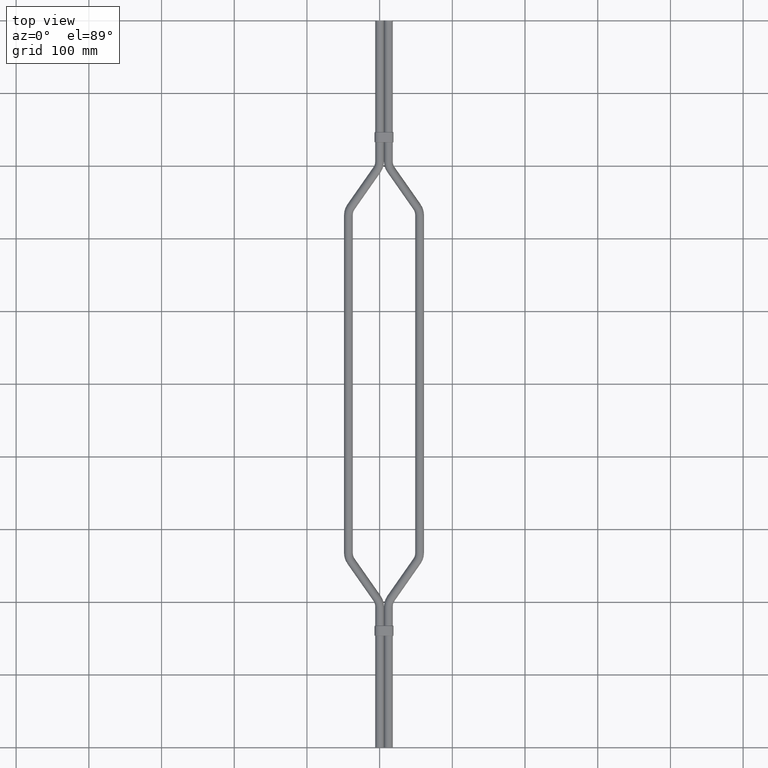
[diagram: clean part render]
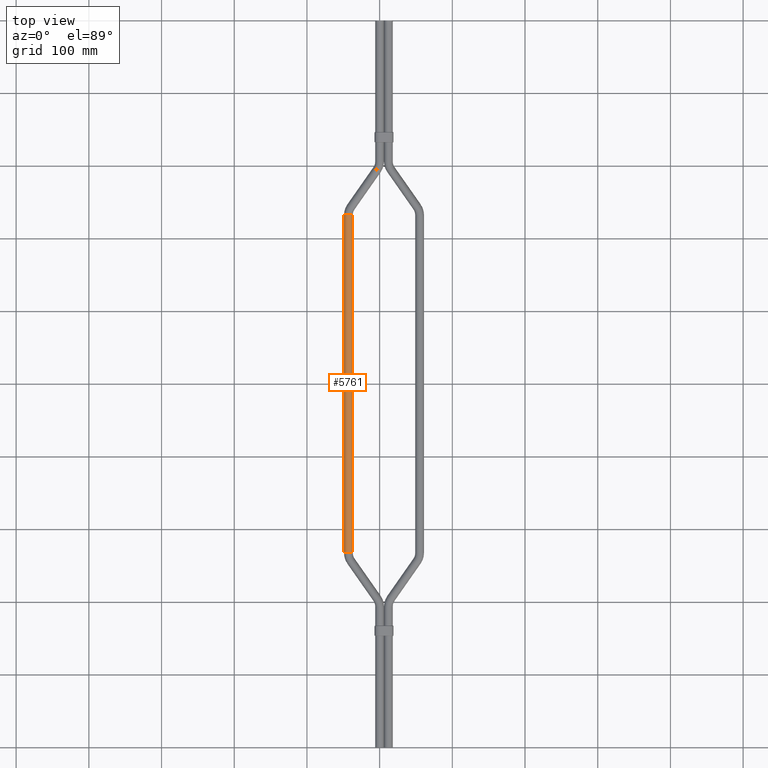
[diagram: same view with one face highlighted and labeled with its STEP entity id]
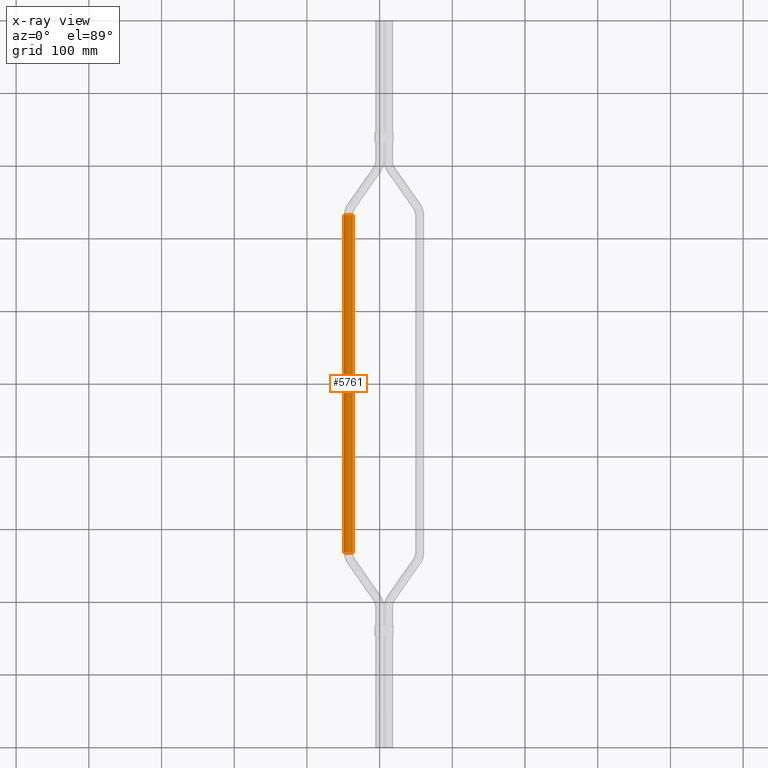
[diagram: x-ray of the same camera — body ghosted, the highlighted face saturated]
A machine part, top view. The second image highlights one B-rep face of the part: STEP entity #5761.
The next image is the same camera in x-ray: the body ghosted, the highlighted face saturated — about 0% of this face is hidden behind the body in this view.
In plain terms, the highlighted cylindrical surface (edge-blend (fillet) strip) has radius 6 mm, axis along (-0, 1, 0).
Its self-contained STEP definition (entity closure, byte-faithful):
#275 = CARTESIAN_POINT ( 'NONE',  ( -42.99999999999998600, 732.2836599325137300, 0.0000000000000000000 ) ) ;
#564 = DIRECTION ( 'NONE',  ( -1.000000000000000000, 0.0000000000000000000, 0.0000000000000000000 ) ) ;
#749 = ORIENTED_EDGE ( 'NONE', *, *, #6240, .F. ) ;
#770 = VECTOR ( 'NONE', #1220, 1000.000000000000000 ) ;
#817 = CARTESIAN_POINT ( 'NONE',  ( -42.99999999999990100, 267.7163400674862100, 0.0000000000000000000 ) ) ;
#878 = DIRECTION ( 'NONE',  ( 0.0000000000000000000, 0.0000000000000000000, 1.000000000000000000 ) ) ;
#1022 = CARTESIAN_POINT ( 'NONE',  ( -48.99999999999990100, 267.7163400674862100, 0.0000000000000000000 ) ) ;
#1040 = EDGE_CURVE ( 'NONE', #7381, #1831, #1161, .T. ) ;
#1092 = AXIS2_PLACEMENT_3D ( 'NONE', #275, #4609, #878 ) ;
#1161 = LINE ( 'NONE', #1245, #770 ) ;
#1220 = DIRECTION ( 'NONE',  ( -1.792350070406987500E-016, 1.000000000000000000, 0.0000000000000000000 ) ) ;
#1245 = CARTESIAN_POINT ( 'NONE',  ( -48.99999999999990100, 267.7163400674862100, 0.0000000000000000000 ) ) ;
#1439 = DIRECTION ( 'NONE',  ( 0.0000000000000000000, 0.0000000000000000000, 1.000000000000000000 ) ) ;
#1831 = VERTEX_POINT ( 'NONE', #4929 ) ;
#2082 = AXIS2_PLACEMENT_3D ( 'NONE', #7127, #4890, #564 ) ;
#2495 = CARTESIAN_POINT ( 'NONE',  ( -36.99999999999990100, 267.7163400674862100, 7.347880794884174000E-016 ) ) ;
#2862 = ORIENTED_EDGE ( 'NONE', *, *, #5230, .T. ) ;
#2947 = LINE ( 'NONE', #5305, #5988 ) ;
#3379 = ORIENTED_EDGE ( 'NONE', *, *, #1040, .F. ) ;
#4162 = EDGE_CURVE ( 'NONE', #7381, #6590, #4411, .T. ) ;
#4179 = VERTEX_POINT ( 'NONE', #5831 ) ;
#4411 = CIRCLE ( 'NONE', #7158, 6.000000000000000900 ) ;
#4609 = DIRECTION ( 'NONE',  ( -7.771561172376097800E-016, 1.000000000000000000, 0.0000000000000000000 ) ) ;
#4890 = DIRECTION ( 'NONE',  ( -1.792350070406987200E-016, 1.000000000000000000, 0.0000000000000000000 ) ) ;
#4929 = CARTESIAN_POINT ( 'NONE',  ( -48.99999999999997900, 732.2836599325137300, 0.0000000000000000000 ) ) ;
#5149 = DIRECTION ( 'NONE',  ( -7.771561172376097800E-016, 1.000000000000000000, 0.0000000000000000000 ) ) ;
#5230 = EDGE_CURVE ( 'NONE', #6590, #4179, #2947, .T. ) ;
#5305 = CARTESIAN_POINT ( 'NONE',  ( -36.99999999999990100, 267.7163400674862100, 7.347880794884120700E-016 ) ) ;
#5761 = ADVANCED_FACE ( 'NONE', ( #6814 ), #6649, .T. ) ;
#5789 = CIRCLE ( 'NONE', #1092, 6.000000000000000900 ) ;
#5831 = CARTESIAN_POINT ( 'NONE',  ( -36.99999999999998600, 732.2836599325137300, 7.347880794884123700E-016 ) ) ;
#5902 = DIRECTION ( 'NONE',  ( -1.792350070406987500E-016, 1.000000000000000000, 0.0000000000000000000 ) ) ;
#5988 = VECTOR ( 'NONE', #5902, 1000.000000000000000 ) ;
#6182 = EDGE_LOOP ( 'NONE', ( #6834, #2862, #749, #3379 ) ) ;
#6240 = EDGE_CURVE ( 'NONE', #1831, #4179, #5789, .T. ) ;
#6590 = VERTEX_POINT ( 'NONE', #2495 ) ;
#6649 = CYLINDRICAL_SURFACE ( 'NONE', #2082, 5.999999999999998200 ) ;
#6814 = FACE_OUTER_BOUND ( 'NONE', #6182, .T. ) ;
#6834 = ORIENTED_EDGE ( 'NONE', *, *, #4162, .T. ) ;
#7127 = CARTESIAN_POINT ( 'NONE',  ( -42.99999999999990100, 267.7163400674862100, 0.0000000000000000000 ) ) ;
#7158 = AXIS2_PLACEMENT_3D ( 'NONE', #817, #5149, #1439 ) ;
#7381 = VERTEX_POINT ( 'NONE', #1022 ) ;